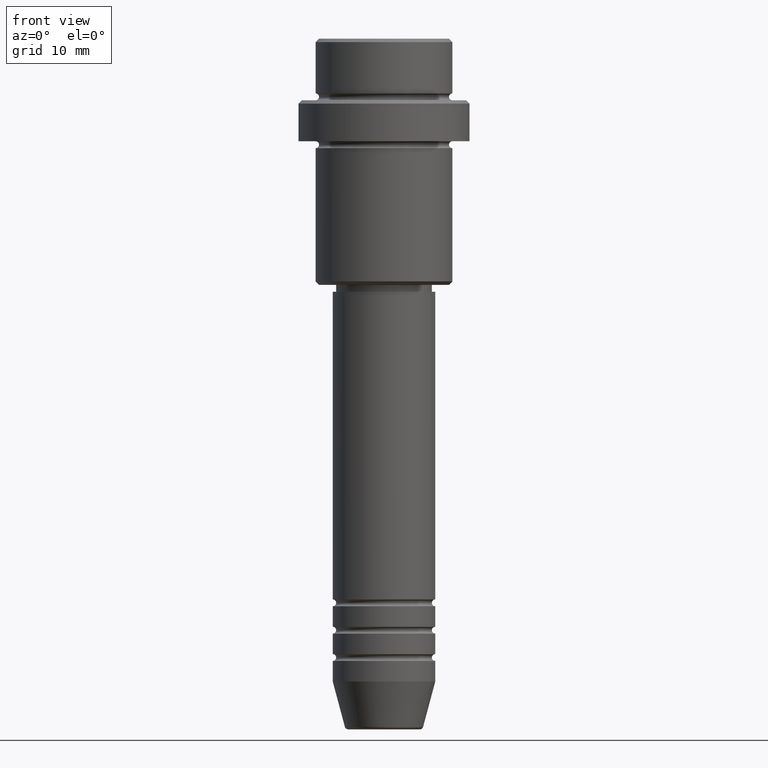
[diagram: clean part render]
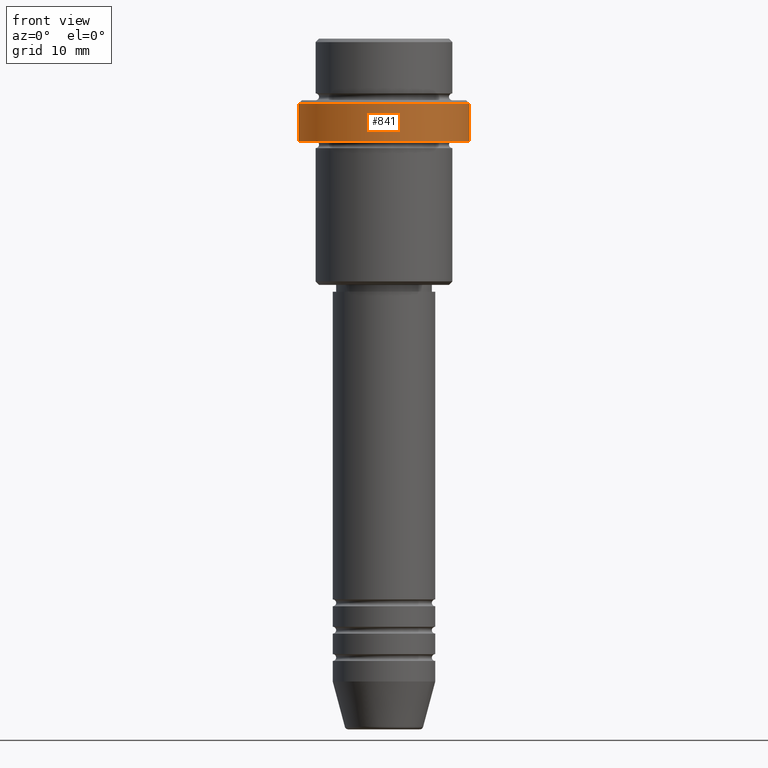
[diagram: same view with one face highlighted and labeled with its STEP entity id]
A machine part, front view. The second image highlights one B-rep face of the part: STEP entity #841.
In plain terms, the highlighted cylindrical surface (partial cylindrical patch) has radius 12.5 mm, axis along (-0, -0, 1).
Its self-contained STEP definition (entity closure, byte-faithful):
#48 = EDGE_LOOP ( 'NONE', ( #216, #820, #478, #811 ) ) ;
#59 = DIRECTION ( 'NONE',  ( 1.000000000000000000, 0.000000000000000000, 0.000000000000000000 ) ) ;
#76 = LINE ( 'NONE', #517, #509 ) ;
#94 = LINE ( 'NONE', #312, #876 ) ;
#114 = VERTEX_POINT ( 'NONE', #775 ) ;
#135 = EDGE_CURVE ( 'NONE', #580, #288, #94, .T. ) ;
#216 = ORIENTED_EDGE ( 'NONE', *, *, #791, .F. ) ;
#288 = VERTEX_POINT ( 'NONE', #495 ) ;
#312 = CARTESIAN_POINT ( 'NONE',  ( 12.50000000000000000, 0.000000000000000000, 0.000000000000000000 ) ) ;
#332 = DIRECTION ( 'NONE',  ( 1.000000000000000000, 0.000000000000000000, 0.000000000000000000 ) ) ;
#423 = CARTESIAN_POINT ( 'NONE',  ( 0.000000000000000000, 0.000000000000000000, 0.000000000000000000 ) ) ;
#443 = CIRCLE ( 'NONE', #1192, 12.50000000000000000 ) ;
#458 = AXIS2_PLACEMENT_3D ( 'NONE', #423, #538, #332 ) ;
#478 = ORIENTED_EDGE ( 'NONE', *, *, #135, .T. ) ;
#495 = CARTESIAN_POINT ( 'NONE',  ( 12.50000000000000000, 0.000000000000000000, -9.500000000000005329 ) ) ;
#509 = VECTOR ( 'NONE', #1381, 1000.000000000000000 ) ;
#517 = CARTESIAN_POINT ( 'NONE',  ( -12.50000000000000000, 1.530808498934191521E-15, 0.000000000000000000 ) ) ;
#538 = DIRECTION ( 'NONE',  ( -0.000000000000000000, -0.000000000000000000, 1.000000000000000000 ) ) ;
#580 = VERTEX_POINT ( 'NONE', #632 ) ;
#582 = DIRECTION ( 'NONE',  ( 0.000000000000000000, 0.000000000000000000, -1.000000000000000000 ) ) ;
#632 = CARTESIAN_POINT ( 'NONE',  ( 12.50000000000000000, 0.000000000000000000, -15.00000000000000000 ) ) ;
#663 = FACE_OUTER_BOUND ( 'NONE', #48, .T. ) ;
#742 = VERTEX_POINT ( 'NONE', #1227 ) ;
#763 = AXIS2_PLACEMENT_3D ( 'NONE', #1055, #1049, #59 ) ;
#775 = CARTESIAN_POINT ( 'NONE',  ( -12.50000000000000000, 1.530808498934191521E-15, -9.500000000000005329 ) ) ;
#788 = CARTESIAN_POINT ( 'NONE',  ( 0.000000000000000000, 0.000000000000000000, -9.500000000000005329 ) ) ;
#791 = EDGE_CURVE ( 'NONE', #742, #114, #76, .T. ) ;
#811 = ORIENTED_EDGE ( 'NONE', *, *, #899, .T. ) ;
#820 = ORIENTED_EDGE ( 'NONE', *, *, #1126, .T. ) ;
#841 = ADVANCED_FACE ( 'NONE', ( #663 ), #1301, .T. ) ;
#869 = DIRECTION ( 'NONE',  ( -0.000000000000000000, -0.000000000000000000, 1.000000000000000000 ) ) ;
#876 = VECTOR ( 'NONE', #869, 1000.000000000000000 ) ;
#899 = EDGE_CURVE ( 'NONE', #288, #114, #443, .T. ) ;
#955 = DIRECTION ( 'NONE',  ( 1.000000000000000000, 0.000000000000000000, 0.000000000000000000 ) ) ;
#1049 = DIRECTION ( 'NONE',  ( -0.000000000000000000, -0.000000000000000000, 1.000000000000000000 ) ) ;
#1055 = CARTESIAN_POINT ( 'NONE',  ( 0.000000000000000000, 0.000000000000000000, -15.00000000000000000 ) ) ;
#1126 = EDGE_CURVE ( 'NONE', #742, #580, #1345, .T. ) ;
#1192 = AXIS2_PLACEMENT_3D ( 'NONE', #788, #582, #955 ) ;
#1227 = CARTESIAN_POINT ( 'NONE',  ( -12.50000000000000000, 1.530808498934191521E-15, -15.00000000000000000 ) ) ;
#1301 = CYLINDRICAL_SURFACE ( 'NONE', #458, 12.50000000000000000 ) ;
#1345 = CIRCLE ( 'NONE', #763, 12.50000000000000000 ) ;
#1381 = DIRECTION ( 'NONE',  ( -0.000000000000000000, -0.000000000000000000, 1.000000000000000000 ) ) ;